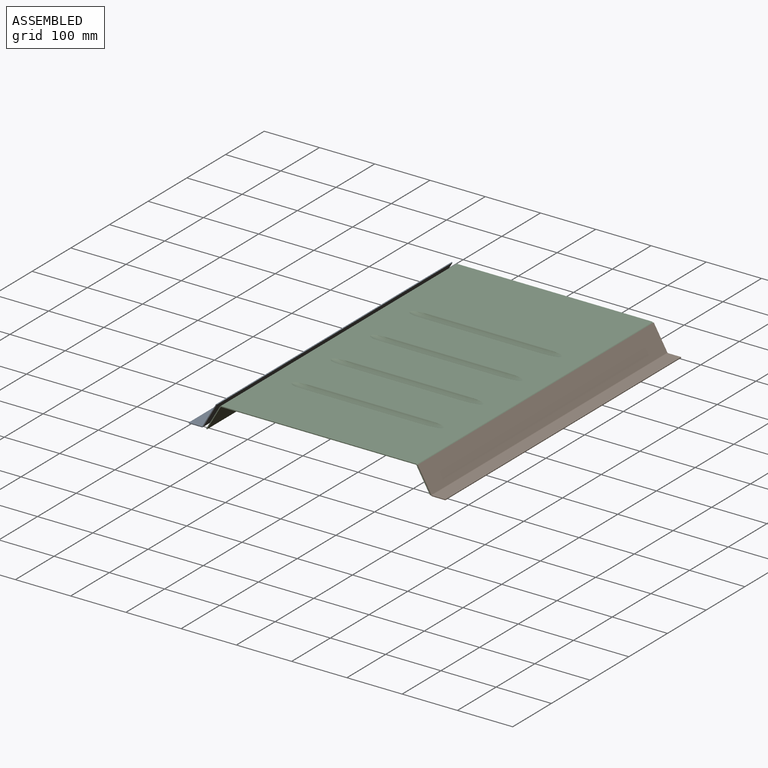
[diagram: assembled view]
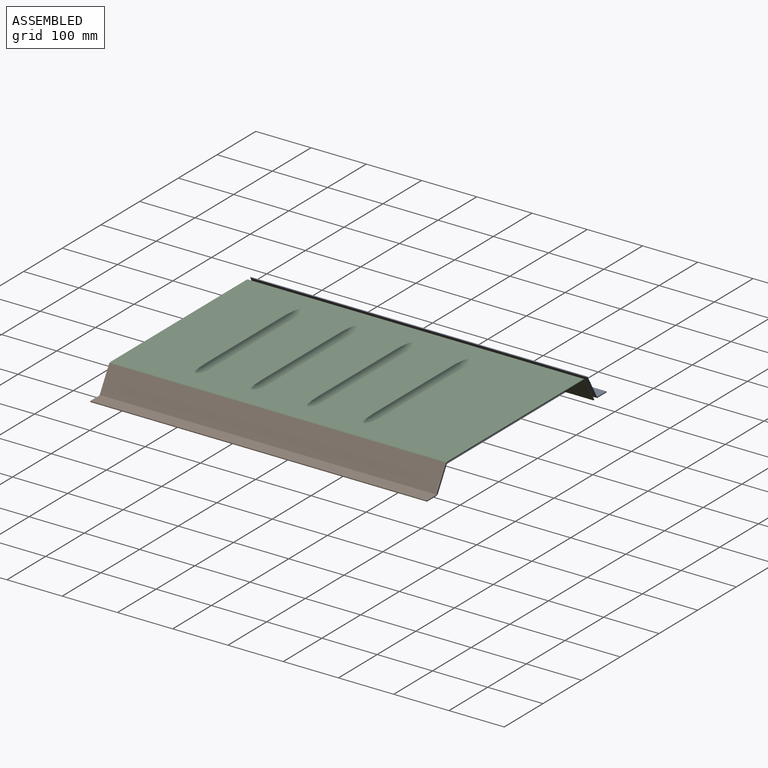
[diagram: assembled view, second angle]
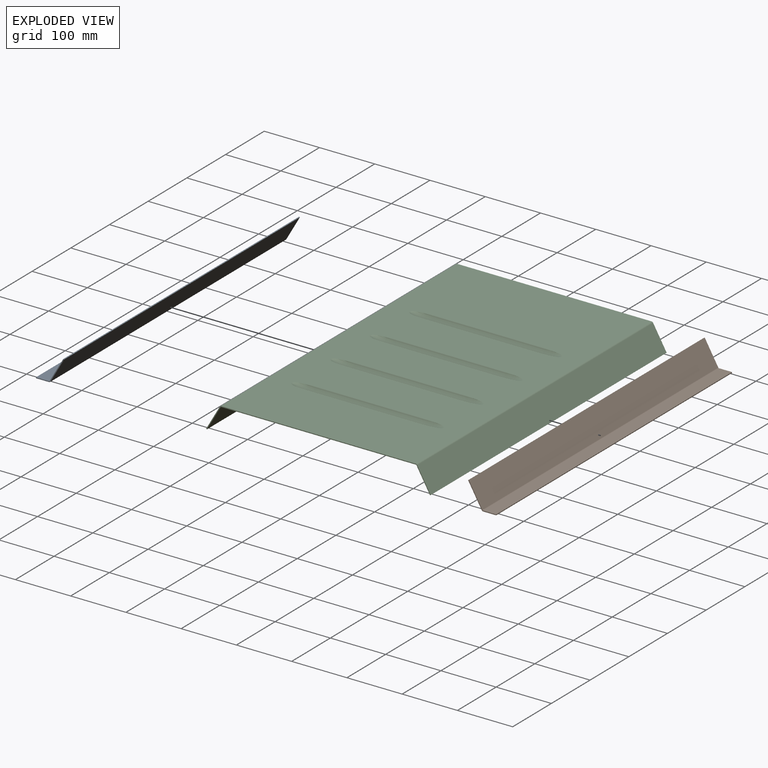
[diagram: exploded view]
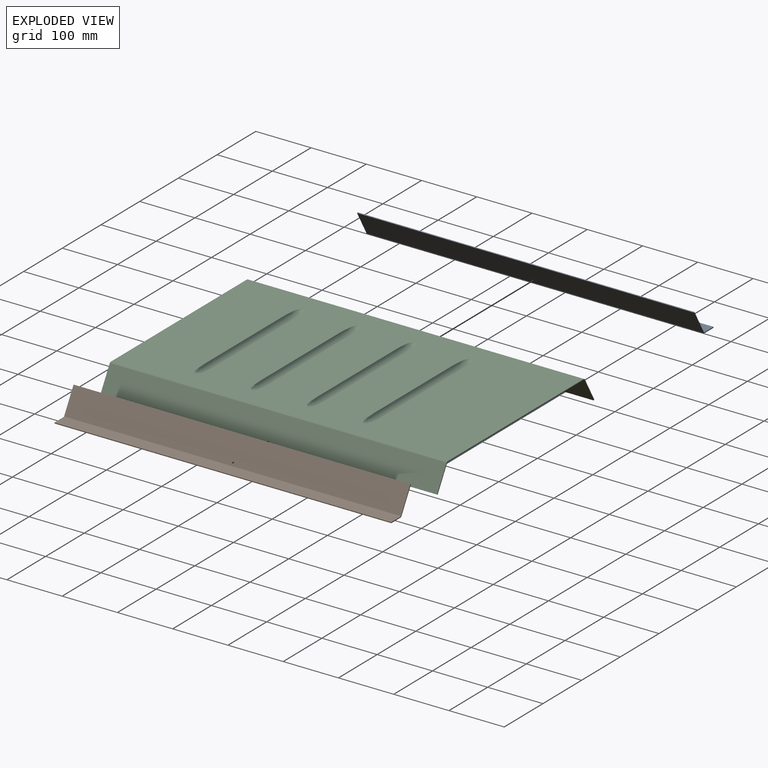
[diagram: exploded view, second angle]
ASSEMBLY  parts=3 mates=2
PART A: 10 faces, bbox 50.8x609.6x44.8 mm
  f0: plane 609.6x1.52mm, normal (-1,0,0), area 929mm2, adj f1,f3,f6,f9
  f1: plane 50.8x44.76mm, normal (0,-1,0), area 114.4mm2, adj f0,f2,f4,f5,f6,f7,f8,f9
  f2: plane 609.6x1.32mm, normal (0.5,0,0.87), area 929mm2, adj f1,f3,f4,f7
  f3: plane 50.8x44.76mm, normal (0,1,0), area 114.4mm2, adj f0,f2,f4,f5,f6,f7,f8,f9
  f4: plane 609.6x42.47mm, normal (-0.87,0,0.5), area 29894.9mm2, adj f1,f2,f3,f5
  f5: cylinder r=1.52mm len=609.6mm, axis (0,1,0), area 972.9mm2, adj f1,f3,f4,f6
  f6: plane 609.6x23.64mm, normal (0,0,1), area 14411.1mm2, adj f0,f1,f3,f5
  f7: plane 609.6x42.47mm, normal (0.87,0,-0.5), area 29894.9mm2, adj f1,f2,f3,f8
  f8: cylinder r=3.05mm len=609.6mm, axis (0,1,0), area 1945.8mm2, adj f1,f3,f7,f9
  f9: plane 609.6x23.64mm, normal (0,0,-1), area 14411.1mm2, adj f0,f1,f3,f8
PART B: same geometry as A
PART C: 38 faces, bbox 406.4x609.6x53.8 mm
  f0: plane 609.6x1.32mm, normal (0.5,0,-0.87), area 929mm2, adj f1,f3,f6,f11
  f1: plane 406.4x44.76mm, normal (0,1,0), area 693.3mm2, adj f0,f2,f4,f5,f6,f7,f8,f9
  f2: plane 609.6x1.32mm, normal (-0.5,0,-0.87), area 929mm2, adj f1,f3,f4,f9
  f3: plane 406.4x44.76mm, normal (0,-1,0), area 693.3mm2, adj f0,f2,f4,f5,f6,f7,f8,f9
  f4: plane 609.6x42.47mm, normal (-0.87,0,0.5), area 29894.9mm2, adj f1,f2,f3,f7
  f5: plane 609.6x352.08mm, normal (0,0,1), area 196105.8mm2, adj f1,f3,f7,f8,f26,f27,f28,f29
  f6: plane 609.6x42.47mm, normal (0.87,0,0.5), area 29894.9mm2, adj f0,f1,f3,f8
  f7: cylinder r=3.05mm len=609.6mm, axis (0,-1,0), area 1945.8mm2, adj f1,f3,f4,f5
  f8: cylinder r=3.05mm len=609.6mm, axis (0,-1,0), area 1945.8mm2, adj f1,f3,f5,f6
  f9: plane 609.6x42.47mm, normal (0.87,0,-0.5), area 29894.9mm2, adj f1,f2,f3,f12
  f10: plane 609.6x352.08mm, normal (0,0,-1), area 194064mm2, adj f1,f3,f12,f13,f14,f15,f16,f17
  f11: plane 609.6x42.47mm, normal (-0.87,0,-0.5), area 29894.9mm2, adj f0,f1,f3,f13
  f12: cylinder r=1.52mm len=609.6mm, axis (0,-1,0), area 972.9mm2, adj f1,f3,f9,f10
  f13: cylinder r=1.52mm len=609.6mm, axis (0,-1,0), area 972.9mm2, adj f1,f3,f10,f11
  f14: torus R=101.6mm, axis (0,-1,0), area 683.6mm2, adj f10,f15
  f15: cylinder r=11.05mm len=203.2mm, axis (1,0,0), area 4908.2mm2, adj f10,f14,f16
  f16: torus R=101.6mm, axis (0,-1,0), area 684.1mm2, adj f10,f15
  f17: torus R=101.6mm, axis (0,-1,0), area 683.6mm2, adj f10,f18
  f18: cylinder r=11.05mm len=203.2mm, axis (1,0,0), area 4908.2mm2, adj f10,f17,f19
  f19: torus R=101.6mm, axis (0,-1,0), area 684.1mm2, adj f10,f18
  f20: torus R=101.6mm, axis (0,-1,0), area 683.6mm2, adj f10,f21
  f21: cylinder r=11.05mm len=203.2mm, axis (1,0,0), area 4908.2mm2, adj f10,f20,f22
  f22: torus R=101.6mm, axis (0,-1,0), area 684.1mm2, adj f10,f21
  f23: torus R=101.6mm, axis (0,-1,0), area 683.6mm2, adj f10,f24
  f24: cylinder r=11.05mm len=203.2mm, axis (1,0,0), area 4908.2mm2, adj f10,f23,f25
  f25: torus R=101.6mm, axis (0,-1,0), area 684.1mm2, adj f10,f24
  f26: torus R=101.6mm, axis (0,-1,0), area 635mm2, adj f5,f27
  f27: cylinder r=9.53mm len=203.2mm, axis (1,0,0), area 4599.5mm2, adj f5,f26,f28
  f28: torus R=101.6mm, axis (0,-1,0), area 634.3mm2, adj f5,f27
  f29: torus R=101.6mm, axis (0,-1,0), area 635mm2, adj f5,f30
  f30: cylinder r=9.53mm len=203.2mm, axis (1,0,0), area 4599.5mm2, adj f5,f29,f31
  f31: torus R=101.6mm, axis (0,-1,0), area 634.3mm2, adj f5,f30
  f32: torus R=101.6mm, axis (0,-1,0), area 635mm2, adj f5,f33
  f33: cylinder r=9.53mm len=203.2mm, axis (1,0,0), area 4599.5mm2, adj f5,f32,f34
  f34: torus R=101.6mm, axis (0,-1,0), area 634.3mm2, adj f5,f33
  f35: torus R=101.6mm, axis (0,-1,0), area 635mm2, adj f5,f36
  f36: cylinder r=9.53mm len=203.2mm, axis (1,0,0), area 4599.5mm2, adj f5,f35,f37
  f37: torus R=101.6mm, axis (0,-1,0), area 634.3mm2, adj f5,f36
PLACE A t=(36.05,-48.86,98.58)mm
PLACE B rot(axis=(0,0,1),180deg) t=(30.58,-48.86,97.06)mm
PLACE C t=(36.05,-48.86,98.58)mm fixed
MATE parallel C.f6 <-> B.f7  axis (0.87,0,0.5) through (226.99,-48.86,75.82)mm
MATE parallel C.f3 <-> B.f3  axis (0,-1,0) through (36.05,-353.66,92.99)mm
